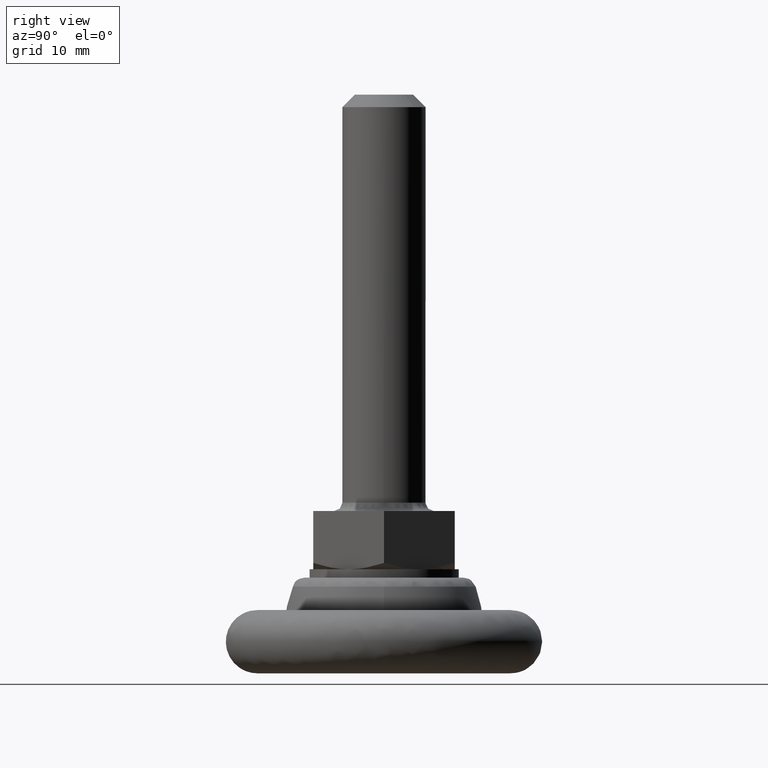
[diagram: clean part render]
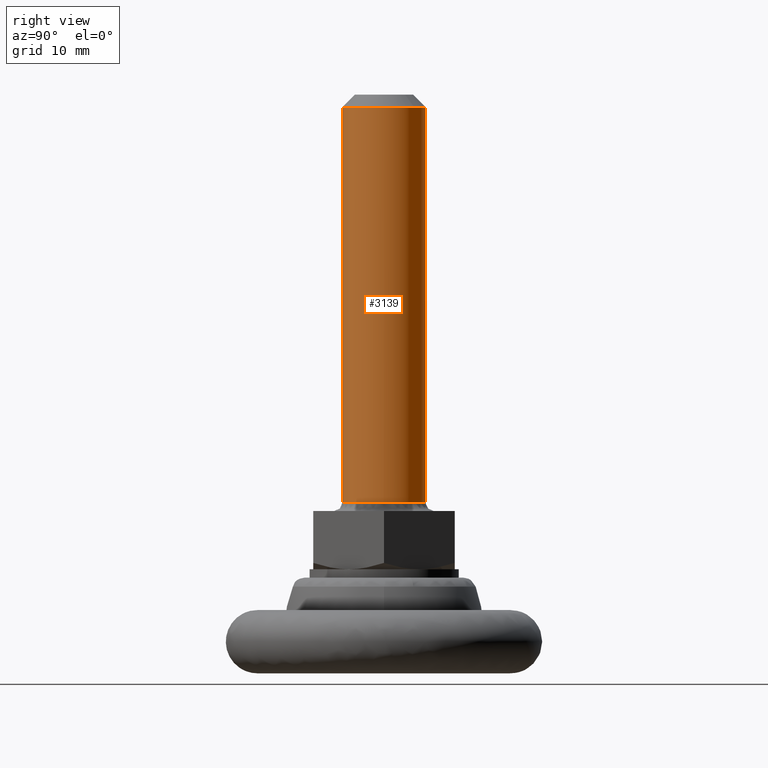
[diagram: same view with one face highlighted and labeled with its STEP entity id]
A machine part, right view. The second image highlights one B-rep face of the part: STEP entity #3139.
In plain terms, the highlighted face is a freeform B-spline surface patch.
Its self-contained STEP definition (entity closure, byte-faithful):
#2876=CARTESIAN_POINT('',(0.043632677810114,4.999809615361476,67.999999999956628));
#2877=VERTEX_POINT('',#2876);
#2883=CARTESIAN_POINT('',(-5.0,0.0,68.0));
#2884=VERTEX_POINT('',#2883);
#2885=CARTESIAN_POINT('',(-5.0,0.0,68.0));
#2886=CARTESIAN_POINT('',(-5.000000000000001,5.000000000000001,68.000000000000014));
#2887=CARTESIAN_POINT('',(0.0,5.0,68.0));
#2888=CARTESIAN_POINT('',(0.021816754421398,5.000000000000001,68.000000000000014));
#2889=CARTESIAN_POINT('',(0.043632677810114,4.999809615361476,67.999999999956628));
#2897=(BOUNDED_CURVE()B_SPLINE_CURVE(2,(#2885,#2886,#2887,#2888,#2889),.UNSPECIFIED.,.F.,.U.)B_SPLINE_CURVE_WITH_KNOTS((3,2,3),(0.500000000000000,0.750000000000000,0.751539894357384),.UNSPECIFIED.)CURVE()GEOMETRIC_REPRESENTATION_ITEM()RATIONAL_B_SPLINE_CURVE((1.0,0.707106781186548,1.0,0.998195901540132,0.996414028048572))REPRESENTATION_ITEM(''));
#2898=EDGE_CURVE('',#2884,#2877,#2897,.T.);
#2900=CARTESIAN_POINT('',(-3.267684875506251,-3.784472955958444,68.0));
#2901=VERTEX_POINT('',#2900);
#2902=CARTESIAN_POINT('',(-3.267684875506250,-3.784472955958444,68.0));
#2903=CARTESIAN_POINT('',(-5.0,-2.288713837637061,68.0));
#2904=CARTESIAN_POINT('',(-5.0,0.0,68.0));
#2912=(BOUNDED_CURVE()B_SPLINE_CURVE(2,(#2902,#2903,#2904),.UNSPECIFIED.,.F.,.U.)B_SPLINE_CURVE_WITH_KNOTS((3,3),(0.363957579307584,0.500000000000000),.UNSPECIFIED.)CURVE()GEOMETRIC_REPRESENTATION_ITEM()RATIONAL_B_SPLINE_CURVE((0.854696237014759,0.840616390032898,1.0))REPRESENTATION_ITEM(''));
#2913=EDGE_CURVE('',#2901,#2884,#2912,.T.);
#2915=CARTESIAN_POINT('',(-0.130880583114134,-4.998286733766520,68.0));
#2916=VERTEX_POINT('',#2915);
#2930=CARTESIAN_POINT('',(5.0,0.0,68.0));
#2931=VERTEX_POINT('',#2930);
#2932=CARTESIAN_POINT('',(5.0,0.0,68.0));
#2933=CARTESIAN_POINT('',(5.000000000000001,-5.000000000000001,68.000000000000014));
#2934=CARTESIAN_POINT('',(0.0,-5.0,68.0));
#2935=CARTESIAN_POINT('',(-0.065451505142447,-5.000000000000001,68.000000000000014));
#2936=CARTESIAN_POINT('',(-0.130880583114134,-4.998286733766520,68.0));
#2944=(BOUNDED_CURVE()B_SPLINE_CURVE(2,(#2932,#2933,#2934,#2935,#2936),.UNSPECIFIED.,.F.,.U.)B_SPLINE_CURVE_WITH_KNOTS((3,2,3),(0.0,0.250000000000000,0.254603161143202),.UNSPECIFIED.)CURVE()GEOMETRIC_REPRESENTATION_ITEM()RATIONAL_B_SPLINE_CURVE((1.0,0.707106781186548,1.0,0.994607061264202,0.989412719056695))REPRESENTATION_ITEM(''));
#2945=EDGE_CURVE('',#2931,#2916,#2944,.T.);
#2947=CARTESIAN_POINT('',(3.448196213920664,3.620765508881160,68.0));
#2948=VERTEX_POINT('',#2947);
#2949=CARTESIAN_POINT('',(3.448196213920664,3.620765508881159,68.0));
#2950=CARTESIAN_POINT('',(5.000000000000001,2.142922238781336,68.000000000000014));
#2951=CARTESIAN_POINT('',(5.0,0.0,68.0));
#2959=(BOUNDED_CURVE()B_SPLINE_CURVE(2,(#2949,#2950,#2951),.UNSPECIFIED.,.F.,.U.)B_SPLINE_CURVE_WITH_KNOTS((3,3),(0.871317023849591,1.0),.UNSPECIFIED.)CURVE()GEOMETRIC_REPRESENTATION_ITEM()RATIONAL_B_SPLINE_CURVE((0.853680523245773,0.849238515635248,1.0))REPRESENTATION_ITEM(''));
#2960=EDGE_CURVE('',#2948,#2931,#2959,.T.);
#2998=CARTESIAN_POINT('',(0.043632677810114,4.999809615361476,67.999999999956628));
#2999=CARTESIAN_POINT('',(2.018230574089152,4.982577560286249,68.0));
#3000=CARTESIAN_POINT('',(3.448196213920664,3.620765508881160,68.0));
#3008=(BOUNDED_CURVE()B_SPLINE_CURVE(2,(#2998,#2999,#3000),.UNSPECIFIED.,.F.,.U.)B_SPLINE_CURVE_WITH_KNOTS((3,3),(0.751539894357384,0.871317023849591),.UNSPECIFIED.)CURVE()GEOMETRIC_REPRESENTATION_ITEM()RATIONAL_B_SPLINE_CURVE((0.996414028048573,0.857815109938495,0.853680523245773))REPRESENTATION_ITEM(''));
#3009=EDGE_CURVE('',#2877,#2948,#3008,.T.);
#3015=CARTESIAN_POINT('',(-3.267686856523481,-3.784471245458693,69.187500000008399));
#3016=CARTESIAN_POINT('',(-5.060282995607246,-2.236661138625977,69.187500000008384));
#3017=CARTESIAN_POINT('',(-4.998286624877784,0.130884741539367,69.187500000008384));
#3018=CARTESIAN_POINT('',(-4.867401883338416,5.129171366417153,69.187500000008384));
#3019=CARTESIAN_POINT('',(0.130884741539367,4.998286624877784,69.187500000008384));
#3020=CARTESIAN_POINT('',(5.129171366417153,4.867401883338416,69.187500000008384));
#3021=CARTESIAN_POINT('',(4.998286624877784,-0.130884741539367,69.187500000008384));
#3022=CARTESIAN_POINT('',(4.867401883338416,-5.129171366417153,69.187500000008384));
#3023=CARTESIAN_POINT('',(-0.130884741539367,-4.998286624877784,69.187500000008384));
#3024=CARTESIAN_POINT('',(-3.267686856523481,-3.784471245458693,19.282812499656412));
#3025=CARTESIAN_POINT('',(-5.060282995607246,-2.236661138625977,19.282812499656419));
#3026=CARTESIAN_POINT('',(-4.998286624877784,0.130884741539367,19.282812499656419));
#3027=CARTESIAN_POINT('',(-4.867401883338416,5.129171366417153,19.282812499656409));
#3028=CARTESIAN_POINT('',(0.130884741539367,4.998286624877784,19.282812499656419));
#3029=CARTESIAN_POINT('',(5.129171366417153,4.867401883338416,19.282812499656409));
#3030=CARTESIAN_POINT('',(4.998286624877784,-0.130884741539367,19.282812499656419));
#3031=CARTESIAN_POINT('',(4.867401883338416,-5.129171366417153,19.282812499656409));
#3032=CARTESIAN_POINT('',(-0.130884741539367,-4.998286624877784,19.282812499656419));
#3040=(BOUNDED_SURFACE()B_SPLINE_SURFACE(2,1,((#3015,#3024),(#3016,#3025),(#3017,#3026),(#3018,#3027),(#3019,#3028),(#3020,#3029),(#3021,#3030),(#3022,#3031),(#3023,#3032)),.UNSPECIFIED.,.F.,.F.,.U.)B_SPLINE_SURFACE_WITH_KNOTS((3,2,2,2,3),(2,2),(0.0,4.639191898578663,12.923463146040559,21.207734393502459,29.492005640964361),(0.0,49.904687500351983),.UNSPECIFIED.)GEOMETRIC_REPRESENTATION_ITEM()RATIONAL_B_SPLINE_SURFACE(((0.855662221768731,0.855662221768731),(0.835979797464467,0.835979797464467),(1.0,1.0),(0.707106781186548,0.707106781186548),(1.0,1.0),(0.707106781186548,0.707106781186548),(1.0,1.0),(0.707106781186548,0.707106781186548),(1.0,1.0)))REPRESENTATION_ITEM('')SURFACE());
#3041=CARTESIAN_POINT('',(-5.0,0.0,20.500000000000000));
#3042=VERTEX_POINT('',#3041);
#3043=CARTESIAN_POINT('',(-3.267685579757423,-3.784472347876589,20.500000000000011));
#3044=VERTEX_POINT('',#3043);
#3045=CARTESIAN_POINT('',(-5.0,0.0,20.500000000000000));
#3046=CARTESIAN_POINT('',(-5.0,-2.288713274935498,20.499999999999996));
#3047=CARTESIAN_POINT('',(-3.267685579757423,-3.784472347876590,20.500000000000011));
#3055=(BOUNDED_CURVE()B_SPLINE_CURVE(2,(#3045,#3046,#3047),.UNSPECIFIED.,.F.,.U.)B_SPLINE_CURVE_WITH_KNOTS((3,3),(0.500000000000000,0.636042392576072),.UNSPECIFIED.)CURVE()GEOMETRIC_REPRESENTATION_ITEM()RATIONAL_B_SPLINE_CURVE((1.0,0.840616422973244,0.854696231194908))REPRESENTATION_ITEM(''));
#3056=EDGE_CURVE('',#3042,#3044,#3055,.T.);
#3057=ORIENTED_EDGE('',*,*,#3056,.T.);
#3058=CARTESIAN_POINT('',(-3.267684875506251,-3.784472955958444,68.0));
#3059=CARTESIAN_POINT('',(-3.267685579757423,-3.784472347876589,20.500000000000011));
#3060=QUASI_UNIFORM_CURVE('',1,(#3058,#3059),.UNSPECIFIED.,.F.,.U.);
#3061=EDGE_CURVE('',#2901,#3044,#3060,.T.);
#3062=ORIENTED_EDGE('',*,*,#3061,.F.);
#3063=ORIENTED_EDGE('',*,*,#2913,.T.);
#3064=ORIENTED_EDGE('',*,*,#2898,.T.);
#3065=ORIENTED_EDGE('',*,*,#3009,.T.);
#3066=ORIENTED_EDGE('',*,*,#2960,.T.);
#3067=ORIENTED_EDGE('',*,*,#2945,.T.);
#3068=CARTESIAN_POINT('',(-0.130884784818530,-4.998286623744480,20.500000000000000));
#3069=VERTEX_POINT('',#3068);
#3070=CARTESIAN_POINT('',(-0.130880583114134,-4.998286733766520,68.0));
#3071=CARTESIAN_POINT('',(-0.130884784818530,-4.998286623744480,20.500000000000000));
#3072=QUASI_UNIFORM_CURVE('',1,(#3070,#3071),.UNSPECIFIED.,.F.,.U.);
#3073=EDGE_CURVE('',#2916,#3069,#3072,.T.);
#3074=ORIENTED_EDGE('',*,*,#3073,.T.);
#3075=CARTESIAN_POINT('',(4.999605221019062,-0.062830199418189,20.499999999665000));
#3076=VERTEX_POINT('',#3075);
#3077=CARTESIAN_POINT('',(-0.130884784818530,-4.998286623744480,20.500000000000000));
#3078=CARTESIAN_POINT('',(-0.065453628725594,-5.0,20.500000000000004));
#3079=CARTESIAN_POINT('',(0.0,-5.0,20.500000000000000));
#3080=CARTESIAN_POINT('',(4.937559649533767,-4.999999999999999,20.499999999999996));
#3081=CARTESIAN_POINT('',(4.999605221019062,-0.062830199418189,20.499999999665008));
#3089=(BOUNDED_CURVE()B_SPLINE_CURVE(2,(#3077,#3078,#3079,#3080,#3081),.UNSPECIFIED.,.F.,.U.)B_SPLINE_CURVE_WITH_KNOTS((3,2,3),(0.745396690312060,0.750000000000000,0.997784295921628),.UNSPECIFIED.)CURVE()GEOMETRIC_REPRESENTATION_ITEM()RATIONAL_B_SPLINE_CURVE((0.989412383812413,0.994606887233216,1.0,0.709702639984357,0.994854295643782))REPRESENTATION_ITEM(''));
#3090=EDGE_CURVE('',#3069,#3076,#3089,.T.);
#3091=ORIENTED_EDGE('',*,*,#3090,.T.);
#3092=CARTESIAN_POINT('',(5.0,0.0,20.500000000000000));
#3093=VERTEX_POINT('',#3092);
#3094=CARTESIAN_POINT('',(4.999605221019062,-0.062830199418189,20.499999999664997));
#3095=CARTESIAN_POINT('',(5.0,-0.031416339960875,20.500000000000004));
#3096=CARTESIAN_POINT('',(5.0,0.0,20.500000000000000));
#3104=(BOUNDED_CURVE()B_SPLINE_CURVE(2,(#3094,#3095,#3096),.UNSPECIFIED.,.F.,.U.)B_SPLINE_CURVE_WITH_KNOTS((3,3),(0.997784295921628,1.0),.UNSPECIFIED.)CURVE()GEOMETRIC_REPRESENTATION_ITEM()RATIONAL_B_SPLINE_CURVE((0.994854295643781,0.997404141202190,1.0))REPRESENTATION_ITEM(''));
#3105=EDGE_CURVE('',#3076,#3093,#3104,.T.);
#3106=ORIENTED_EDGE('',*,*,#3105,.T.);
#3107=CARTESIAN_POINT('',(0.348666257935319,4.987828369198100,20.499999999680359));
#3108=VERTEX_POINT('',#3107);
#3109=CARTESIAN_POINT('',(5.0,0.0,20.500000000000000));
#3110=CARTESIAN_POINT('',(5.000000000000001,4.662684236224195,20.500000000000000));
#3111=CARTESIAN_POINT('',(0.348666257935319,4.987828369198100,20.499999999680362));
#3119=(BOUNDED_CURVE()B_SPLINE_CURVE(2,(#3109,#3110,#3111),.UNSPECIFIED.,.F.,.U.)B_SPLINE_CURVE_WITH_KNOTS((3,3),(0.0,0.237833686531127),.UNSPECIFIED.)CURVE()GEOMETRIC_REPRESENTATION_ITEM()RATIONAL_B_SPLINE_CURVE((1.0,0.721360504038514,0.972879876378591))REPRESENTATION_ITEM(''));
#3120=EDGE_CURVE('',#3093,#3108,#3119,.T.);
#3121=ORIENTED_EDGE('',*,*,#3120,.T.);
#3122=CARTESIAN_POINT('',(0.348666257935319,4.987828369198101,20.499999999680366));
#3123=CARTESIAN_POINT('',(0.174545579431879,4.999999999999999,20.500000000000000));
#3124=CARTESIAN_POINT('',(0.0,5.0,20.500000000000000));
#3125=CARTESIAN_POINT('',(-5.000000000000001,5.000000000000001,20.500000000000007));
#3126=CARTESIAN_POINT('',(-5.0,0.0,20.500000000000000));
#3134=(BOUNDED_CURVE()B_SPLINE_CURVE(2,(#3122,#3123,#3124,#3125,#3126),.UNSPECIFIED.,.F.,.U.)B_SPLINE_CURVE_WITH_KNOTS((3,2,3),(0.237833686531127,0.250000000000000,0.500000000000000),.UNSPECIFIED.)CURVE()GEOMETRIC_REPRESENTATION_ITEM()RATIONAL_B_SPLINE_CURVE((0.972879876378591,0.985746277148034,1.0,0.707106781186548,1.0))REPRESENTATION_ITEM(''));
#3135=EDGE_CURVE('',#3108,#3042,#3134,.T.);
#3136=ORIENTED_EDGE('',*,*,#3135,.T.);
#3137=EDGE_LOOP('',(#3057,#3062,#3063,#3064,#3065,#3066,#3067,#3074,#3091,#3106,#3121,#3136));
#3138=FACE_OUTER_BOUND('',#3137,.T.);
#3139=ADVANCED_FACE('',(#3138),#3040,.T.);